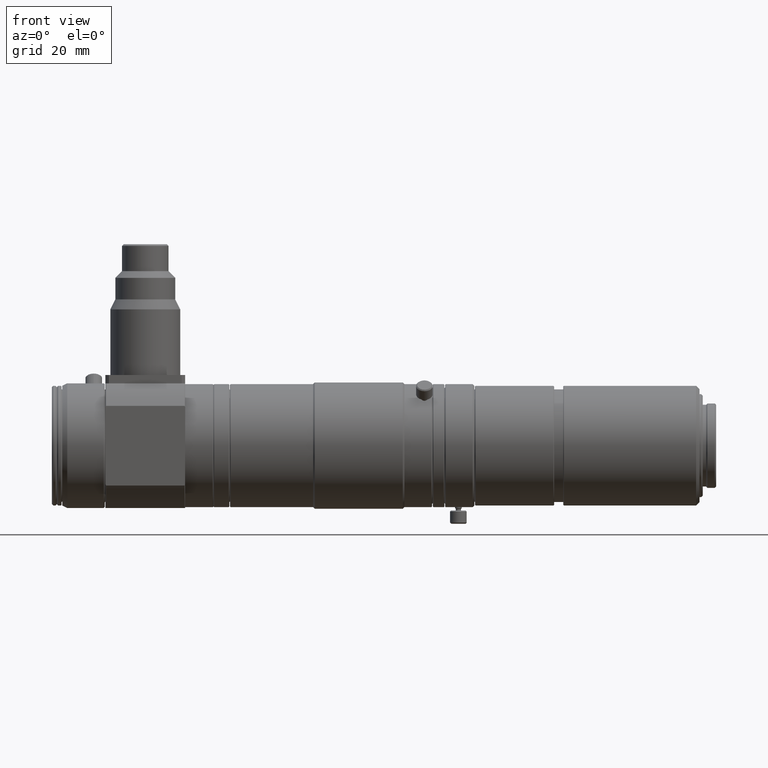
[diagram: clean part render]
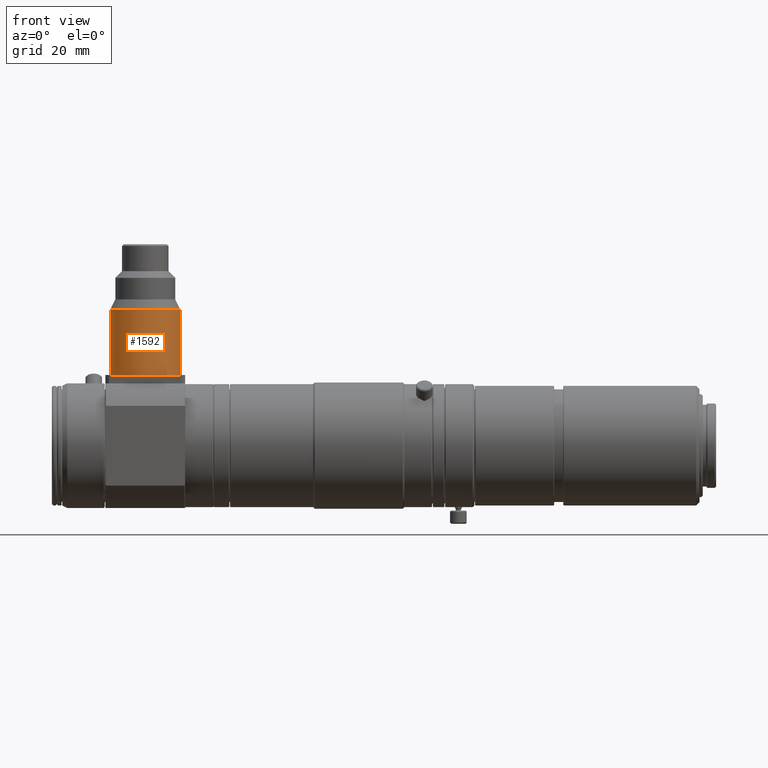
[diagram: same view with one face highlighted and labeled with its STEP entity id]
A machine part, front view. The second image highlights one B-rep face of the part: STEP entity #1592.
In plain terms, the highlighted cylindrical surface (edge-blend (fillet) strip) has radius 10.5 mm, axis along (-0, -0, -1).
Its self-contained STEP definition (entity closure, byte-faithful):
#233 = DIRECTION ( 'NONE',  ( -1.000000000000000000, 0.0000000000000000000, 0.0000000000000000000 ) ) ;
#238 = DIRECTION ( 'NONE',  ( -0.0000000000000000000, -0.0000000000000000000, -1.000000000000000000 ) ) ;
#259 = CARTESIAN_POINT ( 'NONE',  ( -185.2721943623768900, 0.0000000000000000000, 0.0000000000000000000 ) ) ;
#1592 = ADVANCED_FACE ( 'NONE', ( #5859 ), #5869, .T. ) ;
#1771 = EDGE_CURVE ( 'NONE', #4264, #4302, #6525, .T. ) ;
#1963 = EDGE_CURVE ( 'NONE', #4299, #4286, #6731, .T. ) ;
#2085 = CARTESIAN_POINT ( 'NONE',  ( -185.2721943623768900, 0.0000000000000000000, 40.99999999999996400 ) ) ;
#2086 = DIRECTION ( 'NONE',  ( -0.0000000000000000000, -0.0000000000000000000, -1.000000000000000000 ) ) ;
#2087 = DIRECTION ( 'NONE',  ( -1.000000000000000000, 0.0000000000000000000, 0.0000000000000000000 ) ) ;
#2235 = CARTESIAN_POINT ( 'NONE',  ( -195.7721943623769500, 0.0000000000000000000, 0.0000000000000000000 ) ) ;
#2236 = DIRECTION ( 'NONE',  ( -0.0000000000000000000, -0.0000000000000000000, -1.000000000000000000 ) ) ;
#2525 = CARTESIAN_POINT ( 'NONE',  ( -174.7721943623768700, 1.285879139104725400E-015, 0.0000000000000000000 ) ) ;
#2526 = DIRECTION ( 'NONE',  ( -0.0000000000000000000, -0.0000000000000000000, -1.000000000000000000 ) ) ;
#2779 = CARTESIAN_POINT ( 'NONE',  ( -174.7721943623768700, 1.285879139104725400E-015, 21.24999999999997200 ) ) ;
#2801 = CARTESIAN_POINT ( 'NONE',  ( -195.7721943623769500, 0.0000000000000000000, 40.99999999999996400 ) ) ;
#2814 = CARTESIAN_POINT ( 'NONE',  ( -174.7721943623768700, 1.285879139104725400E-015, 40.99999999999996400 ) ) ;
#2817 = CARTESIAN_POINT ( 'NONE',  ( -195.7721943623769500, 0.0000000000000000000, 21.24999999999997200 ) ) ;
#3384 = EDGE_CURVE ( 'NONE', #4286, #4302, #6814, .T. ) ;
#3483 = EDGE_CURVE ( 'NONE', #4299, #4264, #6962, .T. ) ;
#4264 = VERTEX_POINT ( 'NONE', #2779 ) ;
#4286 = VERTEX_POINT ( 'NONE', #2801 ) ;
#4299 = VERTEX_POINT ( 'NONE', #2814 ) ;
#4302 = VERTEX_POINT ( 'NONE', #2817 ) ;
#4446 = EDGE_LOOP ( 'NONE', ( #5102, #5103, #5104, #5105 ) ) ;
#5102 = ORIENTED_EDGE ( 'NONE', *, *, #3483, .F. ) ;
#5103 = ORIENTED_EDGE ( 'NONE', *, *, #1963, .T. ) ;
#5104 = ORIENTED_EDGE ( 'NONE', *, *, #3384, .T. ) ;
#5105 = ORIENTED_EDGE ( 'NONE', *, *, #1771, .F. ) ;
#5859 = FACE_OUTER_BOUND ( 'NONE', #4446, .T. ) ;
#5869 = CYLINDRICAL_SURFACE ( 'NONE', #6174, 10.50000000000003700 ) ;
#6174 = AXIS2_PLACEMENT_3D ( 'NONE', #259, #238, #233 ) ;
#6306 = AXIS2_PLACEMENT_3D ( 'NONE', #6459, #6460, #6461 ) ;
#6459 = CARTESIAN_POINT ( 'NONE',  ( -185.2721943623768900, 0.0000000000000000000, 21.24999999999997200 ) ) ;
#6460 = DIRECTION ( 'NONE',  ( -0.0000000000000000000, -0.0000000000000000000, -1.000000000000000000 ) ) ;
#6461 = DIRECTION ( 'NONE',  ( -1.000000000000000000, 0.0000000000000000000, 0.0000000000000000000 ) ) ;
#6525 = CIRCLE ( 'NONE', #6306, 10.50000000000003700 ) ;
#6731 = CIRCLE ( 'NONE', #7254, 10.50000000000003700 ) ;
#6814 = LINE ( 'NONE', #2235, #6817 ) ;
#6817 = VECTOR ( 'NONE', #2236, 1000.000000000000000 ) ;
#6962 = LINE ( 'NONE', #2525, #6965 ) ;
#6965 = VECTOR ( 'NONE', #2526, 1000.000000000000000 ) ;
#7254 = AXIS2_PLACEMENT_3D ( 'NONE', #2085, #2086, #2087 ) ;